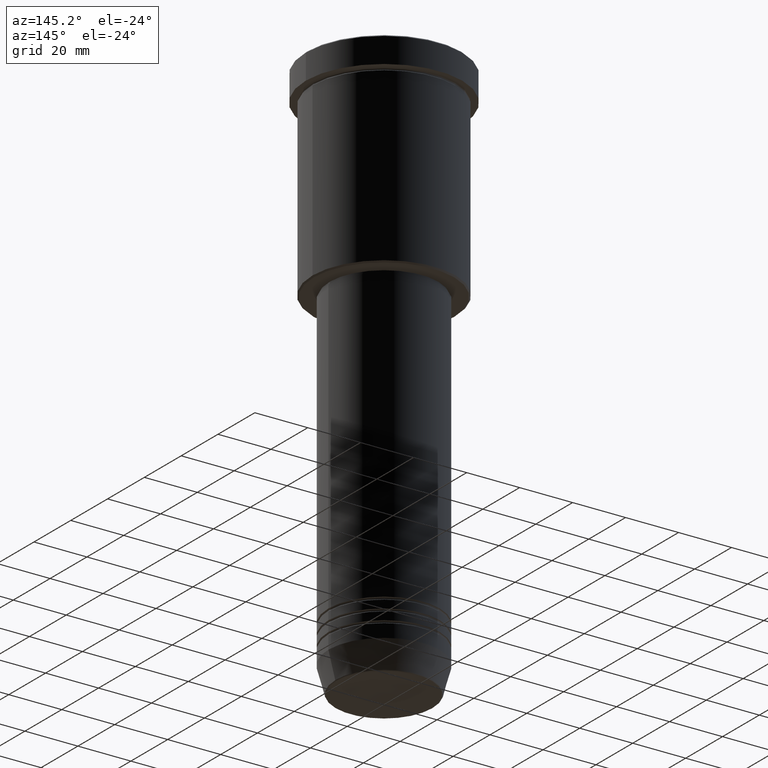
[diagram: clean part render]
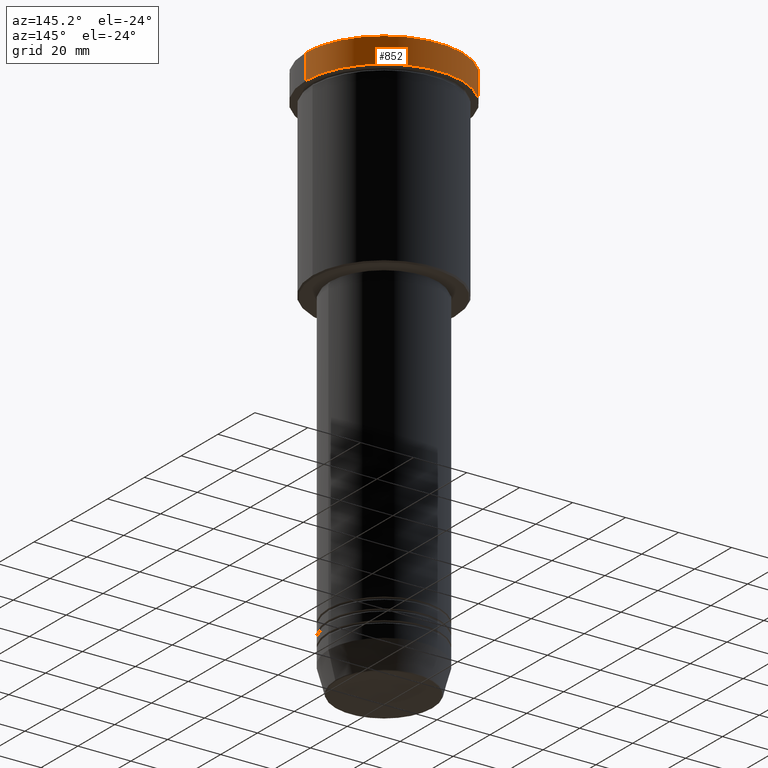
[diagram: same view with one face highlighted and labeled with its STEP entity id]
A machine part, auxiliary view. The second image highlights one B-rep face of the part: STEP entity #852.
In plain terms, the highlighted cylindrical surface (partial cylindrical patch) has radius 29.5 mm, axis along (-0, -0, 1).
Its self-contained STEP definition (entity closure, byte-faithful):
#39 = DIRECTION ( 'NONE',  ( 0.000000000000000000, 0.000000000000000000, -1.000000000000000000 ) ) ;
#90 = ORIENTED_EDGE ( 'NONE', *, *, #351, .T. ) ;
#94 = EDGE_CURVE ( 'NONE', #613, #393, #1072, .T. ) ;
#96 = VERTEX_POINT ( 'NONE', #1121 ) ;
#154 = LINE ( 'NONE', #962, #274 ) ;
#194 = CARTESIAN_POINT ( 'NONE',  ( 0.000000000000000000, 0.000000000000000000, -9.999999999999992895 ) ) ;
#200 = CIRCLE ( 'NONE', #1093, 29.50000000000000000 ) ;
#205 = CARTESIAN_POINT ( 'NONE',  ( 29.50000000000000000, 0.000000000000000000, -9.999999999999992895 ) ) ;
#269 = ORIENTED_EDGE ( 'NONE', *, *, #551, .F. ) ;
#274 = VECTOR ( 'NONE', #514, 1000.000000000000000 ) ;
#351 = EDGE_CURVE ( 'NONE', #393, #728, #154, .T. ) ;
#370 = ORIENTED_EDGE ( 'NONE', *, *, #94, .T. ) ;
#393 = VERTEX_POINT ( 'NONE', #819 ) ;
#411 = DIRECTION ( 'NONE',  ( 1.000000000000000000, 0.000000000000000000, 0.000000000000000000 ) ) ;
#455 = AXIS2_PLACEMENT_3D ( 'NONE', #1103, #759, #481 ) ;
#481 = DIRECTION ( 'NONE',  ( 1.000000000000000000, 0.000000000000000000, 0.000000000000000000 ) ) ;
#514 = DIRECTION ( 'NONE',  ( -0.000000000000000000, -0.000000000000000000, 1.000000000000000000 ) ) ;
#551 = EDGE_CURVE ( 'NONE', #613, #96, #643, .T. ) ;
#613 = VERTEX_POINT ( 'NONE', #205 ) ;
#643 = LINE ( 'NONE', #1004, #1092 ) ;
#656 = DIRECTION ( 'NONE',  ( -0.000000000000000000, -0.000000000000000000, 1.000000000000000000 ) ) ;
#728 = VERTEX_POINT ( 'NONE', #871 ) ;
#742 = DIRECTION ( 'NONE',  ( -0.000000000000000000, -0.000000000000000000, 1.000000000000000000 ) ) ;
#743 = FACE_OUTER_BOUND ( 'NONE', #1003, .T. ) ;
#759 = DIRECTION ( 'NONE',  ( -0.000000000000000000, -0.000000000000000000, 1.000000000000000000 ) ) ;
#809 = AXIS2_PLACEMENT_3D ( 'NONE', #194, #742, #1126 ) ;
#819 = CARTESIAN_POINT ( 'NONE',  ( -29.50000000000000000, 3.612708057484691604E-15, -9.999999999999992895 ) ) ;
#852 = ADVANCED_FACE ( 'NONE', ( #743 ), #1123, .T. ) ;
#871 = CARTESIAN_POINT ( 'NONE',  ( -29.50000000000000000, 3.612708057484691604E-15, -0.5000000000000281997 ) ) ;
#924 = EDGE_CURVE ( 'NONE', #728, #96, #200, .T. ) ;
#962 = CARTESIAN_POINT ( 'NONE',  ( -29.50000000000000000, 3.612708057484691604E-15, 0.000000000000000000 ) ) ;
#1003 = EDGE_LOOP ( 'NONE', ( #370, #90, #1178, #269 ) ) ;
#1004 = CARTESIAN_POINT ( 'NONE',  ( 29.50000000000000000, 0.000000000000000000, 0.000000000000000000 ) ) ;
#1020 = CARTESIAN_POINT ( 'NONE',  ( 0.000000000000000000, 0.000000000000000000, -0.5000000000000281997 ) ) ;
#1072 = CIRCLE ( 'NONE', #809, 29.50000000000000000 ) ;
#1092 = VECTOR ( 'NONE', #656, 1000.000000000000000 ) ;
#1093 = AXIS2_PLACEMENT_3D ( 'NONE', #1020, #39, #411 ) ;
#1103 = CARTESIAN_POINT ( 'NONE',  ( 0.000000000000000000, 0.000000000000000000, 0.000000000000000000 ) ) ;
#1121 = CARTESIAN_POINT ( 'NONE',  ( 29.50000000000000000, 0.000000000000000000, -0.5000000000000281997 ) ) ;
#1123 = CYLINDRICAL_SURFACE ( 'NONE', #455, 29.50000000000000000 ) ;
#1126 = DIRECTION ( 'NONE',  ( 1.000000000000000000, 0.000000000000000000, 0.000000000000000000 ) ) ;
#1178 = ORIENTED_EDGE ( 'NONE', *, *, #924, .T. ) ;